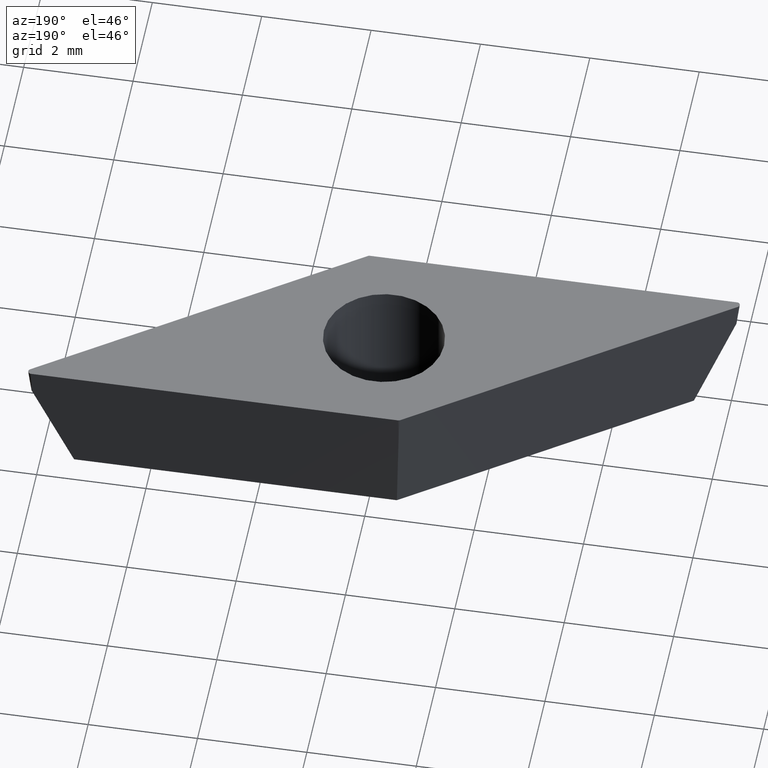
[diagram: clean part render]
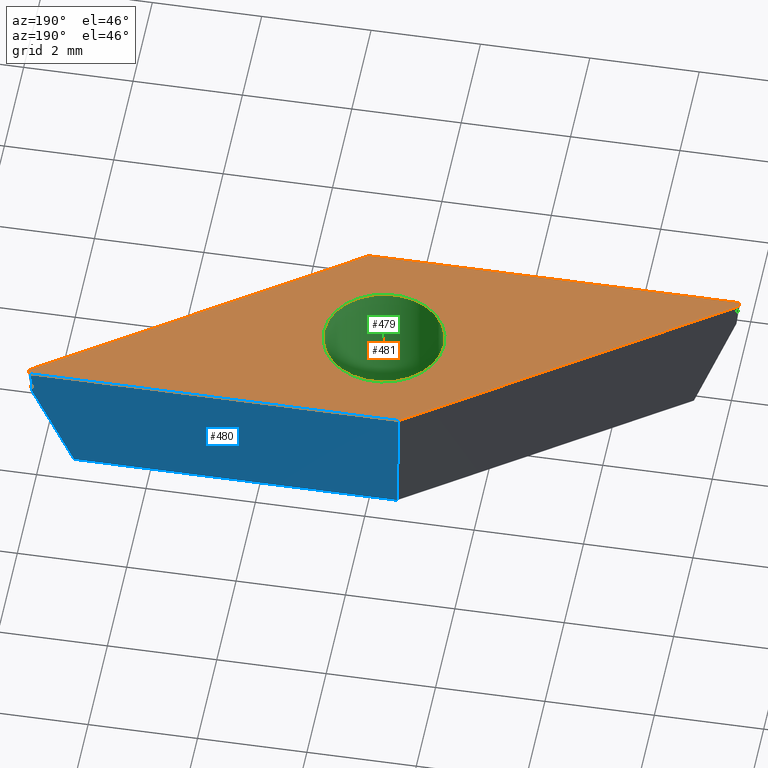
[diagram: same view with three faces highlighted in distinct colors, each labeled with its STEP entity id]
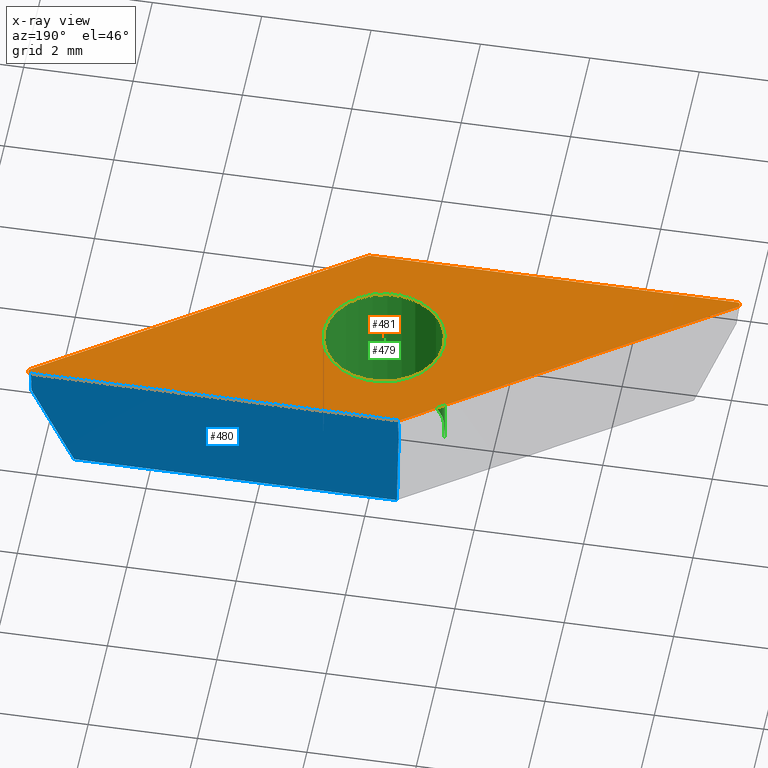
[diagram: x-ray of the same camera — body ghosted, the three highlighted faces saturated]
A machine part, auxiliary view with three faces highlighted in distinct colors.
The next image is the same camera in x-ray (body ghosted, the three faces saturated) — at least one of them is partly hidden behind the body in this view.
Their STEP definitions:

[orange] entity #481 — the highlighted planar face has unit normal (0, 0, -1).
#5 = FACE_BOUND ( 'NONE', #371, .T. ) ;
#29 = VECTOR ( 'NONE', #47, 1000.000000000000000 ) ;
#37 = LINE ( 'NONE', #58, #29 ) ;
#40 = EDGE_CURVE ( 'NONE', #359, #373, #308, .T. ) ;
#47 = DIRECTION ( 'NONE',  ( 1.000000000000000000, 1.253144218394544500E-016, -0.0000000000000000000 ) ) ;
#55 = CARTESIAN_POINT ( 'NONE',  ( 6.105319994549242700, 1.925000000000001600, 0.0000000000000000000 ) ) ;
#57 = LINE ( 'NONE', #148, #63 ) ;
#58 = CARTESIAN_POINT ( 'NONE',  ( 0.6258680959247784300, -1.985000000000000800, 0.0000000000000000000 ) ) ;
#59 = EDGE_CURVE ( 'NONE', #437, #304, #258, .T. ) ;
#62 = EDGE_CURVE ( 'NONE', #430, #396, #238, .T. ) ;
#63 = VECTOR ( 'NONE', #106, 1000.000000000000200 ) ;
#67 = DIRECTION ( 'NONE',  ( -0.0000000000000000000, -0.0000000000000000000, 1.000000000000000000 ) ) ;
#68 = CARTESIAN_POINT ( 'NONE',  ( 0.6069501685920385400, -1.985000000000000800, 0.0000000000000000000 ) ) ;
#75 = AXIS2_PLACEMENT_3D ( 'NONE', #472, #475, #94 ) ;
#80 = CARTESIAN_POINT ( 'NONE',  ( -0.6413647547731044000, 1.974149122657338900, 0.0000000000000000000 ) ) ;
#87 = CIRCLE ( 'NONE', #120, 0.05999999999999994200 ) ;
#89 = DIRECTION ( 'NONE',  ( 1.000000000000000000, 0.0000000000000000000, 0.0000000000000000000 ) ) ;
#92 = CIRCLE ( 'NONE', #449, 0.06000000000000015700 ) ;
#94 = DIRECTION ( 'NONE',  ( -1.000000000000000000, 0.0000000000000000000, 0.0000000000000000000 ) ) ;
#96 = CIRCLE ( 'NONE', #458, 1.100000000000000100 ) ;
#101 = CARTESIAN_POINT ( 'NONE',  ( 0.6413647547731018400, -1.974149122657340700, 0.0000000000000000000 ) ) ;
#106 = DIRECTION ( 'NONE',  ( -0.8191520442889948000, -0.5735764363510418300, -0.0000000000000000000 ) ) ;
#109 = CARTESIAN_POINT ( 'NONE',  ( 1.100000000000000100, 0.0000000000000000000, 0.0000000000000000000 ) ) ;
#110 = DIRECTION ( 'NONE',  ( 0.0000000000000000000, 0.0000000000000000000, 1.000000000000000000 ) ) ;
#119 = EDGE_CURVE ( 'NONE', #453, #378, #183, .T. ) ;
#120 = AXIS2_PLACEMENT_3D ( 'NONE', #185, #181, #180 ) ;
#123 = CARTESIAN_POINT ( 'NONE',  ( 6.105319994549240900, 1.985000000000001400, 0.0000000000000000000 ) ) ;
#133 = EDGE_CURVE ( 'NONE', #378, #437, #178, .T. ) ;
#137 = DIRECTION ( 'NONE',  ( 0.8191520442889946900, 0.5735764363510419400, -0.0000000000000000000 ) ) ;
#138 = DIRECTION ( 'NONE',  ( -1.000000000000000000, 3.614007241618338900E-015, 0.0000000000000000000 ) ) ;
#147 = CARTESIAN_POINT ( 'NONE',  ( 0.0000000000000000000, 0.0000000000000000000, 0.0000000000000000000 ) ) ;
#148 = CARTESIAN_POINT ( 'NONE',  ( -6.295615682691038600, -1.985000000000001400, 0.0000000000000000000 ) ) ;
#153 = CARTESIAN_POINT ( 'NONE',  ( -1.100000000000000100, 1.347111479062088500E-016, 0.0000000000000000000 ) ) ;
#155 = ORIENTED_EDGE ( 'NONE', *, *, #389, .T. ) ;
#156 = AXIS2_PLACEMENT_3D ( 'NONE', #251, #250, #248 ) ;
#157 = VERTEX_POINT ( 'NONE', #68 ) ;
#171 = CARTESIAN_POINT ( 'NONE',  ( -0.6258680959247806500, 1.984999999999999900, 0.0000000000000000000 ) ) ;
#178 = CIRCLE ( 'NONE', #465, 0.06000000000000015700 ) ;
#179 = VECTOR ( 'NONE', #137, 1000.000000000000000 ) ;
#180 = DIRECTION ( 'NONE',  ( -1.000000000000000000, 0.0000000000000000000, 0.0000000000000000000 ) ) ;
#181 = DIRECTION ( 'NONE',  ( -0.0000000000000000000, -0.0000000000000000000, 1.000000000000000000 ) ) ;
#182 = AXIS2_PLACEMENT_3D ( 'NONE', #316, #270, #302 ) ;
#183 = LINE ( 'NONE', #190, #179 ) ;
#185 = CARTESIAN_POINT ( 'NONE',  ( 0.6069501685920385400, -1.925000000000000700, 0.0000000000000000000 ) ) ;
#190 = CARTESIAN_POINT ( 'NONE',  ( 6.295615682691037700, 1.985000000000001400, 0.0000000000000000000 ) ) ;
#201 = VERTEX_POINT ( 'NONE', #461 ) ;
#205 = CARTESIAN_POINT ( 'NONE',  ( 0.0000000000000000000, 0.0000000000000000000, 0.0000000000000000000 ) ) ;
#212 = CARTESIAN_POINT ( 'NONE',  ( 6.139734580730305400, 1.875850877342661900, 0.0000000000000000000 ) ) ;
#213 = CARTESIAN_POINT ( 'NONE',  ( -6.105319994549243600, -1.985000000000001400, 0.0000000000000000000 ) ) ;
#238 = CIRCLE ( 'NONE', #457, 1.100000000000000100 ) ;
#242 = VECTOR ( 'NONE', #357, 1000.000000000000000 ) ;
#245 = CARTESIAN_POINT ( 'NONE',  ( -6.165319994549244100, -1.925000000000001600, 0.0000000000000000000 ) ) ;
#247 = CIRCLE ( 'NONE', #156, 0.06000000000000004600 ) ;
#248 = DIRECTION ( 'NONE',  ( -1.000000000000000000, 3.614007241618345200E-015, 0.0000000000000000000 ) ) ;
#250 = DIRECTION ( 'NONE',  ( -0.0000000000000000000, -0.0000000000000000000, 1.000000000000000000 ) ) ;
#251 = CARTESIAN_POINT ( 'NONE',  ( -0.6069501685920399800, 1.924999999999999800, 0.0000000000000000000 ) ) ;
#258 = LINE ( 'NONE', #171, #242 ) ;
#262 = EDGE_CURVE ( 'NONE', #396, #430, #96, .T. ) ;
#264 = DIRECTION ( 'NONE',  ( 1.000000000000000000, 0.0000000000000000000, 0.0000000000000000000 ) ) ;
#268 = DIRECTION ( 'NONE',  ( 0.0000000000000000000, 0.0000000000000000000, 1.000000000000000000 ) ) ;
#270 = DIRECTION ( 'NONE',  ( 0.0000000000000000000, 0.0000000000000000000, -1.000000000000000000 ) ) ;
#284 = EDGE_CURVE ( 'NONE', #201, #359, #92, .T. ) ;
#287 = DIRECTION ( 'NONE',  ( -1.000000000000000000, 0.0000000000000000000, 0.0000000000000000000 ) ) ;
#295 = DIRECTION ( 'NONE',  ( -0.0000000000000000000, -0.0000000000000000000, 1.000000000000000000 ) ) ;
#296 = CARTESIAN_POINT ( 'NONE',  ( -6.105319994549243600, -1.925000000000001600, 0.0000000000000000000 ) ) ;
#302 = DIRECTION ( 'NONE',  ( -1.000000000000000000, 0.0000000000000000000, -0.0000000000000000000 ) ) ;
#304 = VERTEX_POINT ( 'NONE', #377 ) ;
#308 = CIRCLE ( 'NONE', #75, 0.06000000000000015700 ) ;
#313 = EDGE_CURVE ( 'NONE', #304, #455, #247, .T. ) ;
#316 = CARTESIAN_POINT ( 'NONE',  ( 0.0000000000000000000, 0.0000000000000000000, 0.0000000000000000000 ) ) ;
#322 = PLANE ( 'NONE',  #182 ) ;
#357 = DIRECTION ( 'NONE',  ( -1.000000000000000000, -2.506288436789088400E-016, -0.0000000000000000000 ) ) ;
#359 = VERTEX_POINT ( 'NONE', #245 ) ;
#371 = EDGE_LOOP ( 'NONE', ( #383, #384 ) ) ;
#373 = VERTEX_POINT ( 'NONE', #213 ) ;
#377 = CARTESIAN_POINT ( 'NONE',  ( -0.6069501685920399800, 1.984999999999999900, 0.0000000000000000000 ) ) ;
#378 = VERTEX_POINT ( 'NONE', #212 ) ;
#383 = ORIENTED_EDGE ( 'NONE', *, *, #62, .F. ) ;
#384 = ORIENTED_EDGE ( 'NONE', *, *, #262, .F. ) ;
#385 = ORIENTED_EDGE ( 'NONE', *, *, #313, .T. ) ;
#386 = ORIENTED_EDGE ( 'NONE', *, *, #445, .T. ) ;
#388 = ORIENTED_EDGE ( 'NONE', *, *, #284, .T. ) ;
#389 = EDGE_CURVE ( 'NONE', #157, #453, #87, .T. ) ;
#390 = ORIENTED_EDGE ( 'NONE', *, *, #40, .T. ) ;
#391 = ORIENTED_EDGE ( 'NONE', *, *, #462, .T. ) ;
#395 = ORIENTED_EDGE ( 'NONE', *, *, #119, .T. ) ;
#396 = VERTEX_POINT ( 'NONE', #153 ) ;
#398 = ORIENTED_EDGE ( 'NONE', *, *, #133, .T. ) ;
#405 = EDGE_LOOP ( 'NONE', ( #474, #385, #386, #388, #390, #391, #155, #395, #398 ) ) ;
#430 = VERTEX_POINT ( 'NONE', #109 ) ;
#437 = VERTEX_POINT ( 'NONE', #123 ) ;
#445 = EDGE_CURVE ( 'NONE', #455, #201, #57, .T. ) ;
#449 = AXIS2_PLACEMENT_3D ( 'NONE', #296, #295, #287 ) ;
#453 = VERTEX_POINT ( 'NONE', #101 ) ;
#455 = VERTEX_POINT ( 'NONE', #80 ) ;
#457 = AXIS2_PLACEMENT_3D ( 'NONE', #205, #268, #264 ) ;
#458 = AXIS2_PLACEMENT_3D ( 'NONE', #147, #110, #89 ) ;
#461 = CARTESIAN_POINT ( 'NONE',  ( -6.139734580730306300, -1.875850877342662100, 0.0000000000000000000 ) ) ;
#462 = EDGE_CURVE ( 'NONE', #373, #157, #37, .T. ) ;
#465 = AXIS2_PLACEMENT_3D ( 'NONE', #55, #67, #138 ) ;
#472 = CARTESIAN_POINT ( 'NONE',  ( -6.105319994549243600, -1.925000000000001600, 0.0000000000000000000 ) ) ;
#474 = ORIENTED_EDGE ( 'NONE', *, *, #59, .T. ) ;
#475 = DIRECTION ( 'NONE',  ( -0.0000000000000000000, -0.0000000000000000000, 1.000000000000000000 ) ) ;
#481 = ADVANCED_FACE ( 'NONE', ( #5, #488 ), #322, .F. ) ;
#488 = FACE_OUTER_BOUND ( 'NONE', #405, .T. ) ;

[blue] entity #480 — the highlighted face is a freeform B-spline surface patch.
#9 = FACE_OUTER_BOUND ( 'NONE', #426, .T. ) ;
#19 = VECTOR ( 'NONE', #221, 1000.000000000000000 ) ;
#21 = CARTESIAN_POINT ( 'NONE',  ( 6.105319994549239100, 1.985000000000001400, 0.0000000000000000000 ) ) ;
#22 = EDGE_CURVE ( 'NONE', #332, #444, #191, .T. ) ;
#24 = LINE ( 'NONE', #46, #19 ) ;
#34 = CARTESIAN_POINT ( 'NONE',  ( 3.867896606835475600, 1.985000000000001400, 0.0000000000000000000 ) ) ;
#45 = VECTOR ( 'NONE', #122, 1000.000000000000000 ) ;
#46 = CARTESIAN_POINT ( 'NONE',  ( -0.6069501685920396500, 1.984999999999999900, 0.0000000000000000000 ) ) ;
#48 = LINE ( 'NONE', #143, #45 ) ;
#59 = EDGE_CURVE ( 'NONE', #437, #304, #258, .T. ) ;
#61 = CARTESIAN_POINT ( 'NONE',  ( -0.5581361871052711300, 1.770181830034056400, -1.749553595226165200 ) ) ;
#79 = CARTESIAN_POINT ( 'NONE',  ( -0.5337291963618879800, 1.692772745051086300, -2.379999999999999900 ) ) ;
#108 = CARTESIAN_POINT ( 'NONE',  ( 5.737054617167976800, 1.808886372525546200, -1.434330392839228400 ) ) ;
#114 = CARTESIAN_POINT ( 'NONE',  ( -0.5337291963618879800, 1.692772745051086300, -2.379999999999999900 ) ) ;
#115 = CARTESIAN_POINT ( 'NONE',  ( 1.433776949021000800, 1.692772745051086300, -2.379999999999999400 ) ) ;
#122 = DIRECTION ( 'NONE',  ( 3.054397261754003300E-017, -0.1218693434051477400, -0.9925461516413219800 ) ) ;
#123 = CARTESIAN_POINT ( 'NONE',  ( 6.105319994549240900, 1.985000000000001400, 0.0000000000000000000 ) ) ;
#125 = CARTESIAN_POINT ( 'NONE',  ( 6.105319994549239100, 1.925000000000001400, -0.4886607856784761000 ) ) ;
#127 = CARTESIAN_POINT ( 'NONE',  ( 3.401283094403876100, 1.692772745051087700, -2.379999999999999400 ) ) ;
#139 = CARTESIAN_POINT ( 'NONE',  ( -0.5337291963618879800, 1.692772745051086300, -2.379999999999999900 ) ) ;
#143 = CARTESIAN_POINT ( 'NONE',  ( 6.105319994549239100, 1.985000000000001400, 0.0000000000000000000 ) ) ;
#159 = CARTESIAN_POINT ( 'NONE',  ( -0.6069501685920412100, 1.924999999999996300, -0.4886607856784962500 ) ) ;
#167 = CARTESIAN_POINT ( 'NONE',  ( -0.5825431778486549500, 1.847590915017026900, -1.119107190452330600 ) ) ;
#169 = CARTESIAN_POINT ( 'NONE',  ( -0.5947466732203474700, 1.886295457508511800, -0.8038839880654133900 ) ) ;
#170 = CARTESIAN_POINT ( 'NONE',  ( -0.5703396824769630900, 1.808886372525541700, -1.434330392839247900 ) ) ;
#171 = CARTESIAN_POINT ( 'NONE',  ( -0.6258680959247806500, 1.984999999999999900, 0.0000000000000000000 ) ) ;
#191 = B_SPLINE_CURVE_WITH_KNOTS ( 'NONE', 3,
 ( #431, #368, #370, #108, #464, #338, #376 ),
 .UNSPECIFIED., .F., .F.,
 ( 4, 3, 4 ),
 ( 0.0000000000000000000, 0.001021465989923606000, 0.002042931979847211600 ),
 .UNSPECIFIED. ) ;
#200 = CARTESIAN_POINT ( 'NONE',  ( -0.6069501685920412100, 1.924999999999996300, -0.4886607856784962500 ) ) ;
#217 = CARTESIAN_POINT ( 'NONE',  ( 5.368789239786762500, 1.692772745051088100, -2.379999999999999400 ) ) ;
#221 = DIRECTION ( 'NONE',  ( -3.054397261754003300E-017, 0.1218693434051477400, 0.9925461516413219800 ) ) ;
#226 = CARTESIAN_POINT ( 'NONE',  ( -0.5459326917335797200, 1.731477287542571500, -2.064776797613082400 ) ) ;
#230 = CARTESIAN_POINT ( 'NONE',  ( 5.368789239786762500, 1.692772745051088100, -2.379999999999999400 ) ) ;
#237 = CARTESIAN_POINT ( 'NONE',  ( 6.105319994549239100, 1.634327294061305400, -2.855999999999999400 ) ) ;
#242 = VECTOR ( 'NONE', #357, 1000.000000000000000 ) ;
#258 = LINE ( 'NONE', #171, #242 ) ;
#263 = CARTESIAN_POINT ( 'NONE',  ( 3.867896606835473900, 1.634327294061305400, -2.855999999999999400 ) ) ;
#266 = B_SPLINE_CURVE_WITH_KNOTS ( 'NONE', 3,
 ( #139, #226, #61, #170, #167, #169, #159 ),
 .UNSPECIFIED., .F., .F.,
 ( 4, 3, 4 ),
 ( 0.0000000000000000000, 0.0009534745450647487100, 0.001906949090129497000 ),
 .UNSPECIFIED. ) ;
#277 = CARTESIAN_POINT ( 'NONE',  ( 1.630473219121723500, 1.984999999999999900, 0.0000000000000000000 ) ) ;
#281 = CARTESIAN_POINT ( 'NONE',  ( 1.630473219121725900, 1.634327294061303600, -2.855999999999999400 ) ) ;
#297 = CARTESIAN_POINT ( 'NONE',  ( -0.6069501685920395400, 1.634327294061303600, -2.855999999999999400 ) ) ;
#304 = VERTEX_POINT ( 'NONE', #377 ) ;
#306 = ORIENTED_EDGE ( 'NONE', *, *, #416, .T. ) ;
#307 = ORIENTED_EDGE ( 'NONE', *, *, #483, .T. ) ;
#310 = ORIENTED_EDGE ( 'NONE', *, *, #468, .T. ) ;
#311 = CARTESIAN_POINT ( 'NONE',  ( -0.6069501685920396500, 1.984999999999999900, 0.0000000000000000000 ) ) ;
#312 = ORIENTED_EDGE ( 'NONE', *, *, #59, .F. ) ;
#314 = ORIENTED_EDGE ( 'NONE', *, *, #415, .T. ) ;
#321 = ORIENTED_EDGE ( 'NONE', *, *, #22, .F. ) ;
#332 = VERTEX_POINT ( 'NONE', #230 ) ;
#338 = CARTESIAN_POINT ( 'NONE',  ( 5.982564868755474700, 1.886295457508516900, -0.8038839880653893000 ) ) ;
#357 = DIRECTION ( 'NONE',  ( -1.000000000000000000, -2.506288436789088400E-016, -0.0000000000000000000 ) ) ;
#368 = CARTESIAN_POINT ( 'NONE',  ( 5.491544365580495000, 1.731477287542574100, -2.064776797613073500 ) ) ;
#370 = CARTESIAN_POINT ( 'NONE',  ( 5.614299491374231900, 1.770181830034060600, -1.749553595226149400 ) ) ;
#375 = VERTEX_POINT ( 'NONE', #200 ) ;
#376 = CARTESIAN_POINT ( 'NONE',  ( 6.105319994549239100, 1.925000000000001400, -0.4886607856784761000 ) ) ;
#377 = CARTESIAN_POINT ( 'NONE',  ( -0.6069501685920399800, 1.984999999999999900, 0.0000000000000000000 ) ) ;
#415 = EDGE_CURVE ( 'NONE', #437, #444, #48, .T. ) ;
#416 = EDGE_CURVE ( 'NONE', #332, #454, #469, .T. ) ;
#426 = EDGE_LOOP ( 'NONE', ( #306, #307, #310, #312, #314, #321 ) ) ;
#431 = CARTESIAN_POINT ( 'NONE',  ( 5.368789239786762500, 1.692772745051088100, -2.379999999999999400 ) ) ;
#437 = VERTEX_POINT ( 'NONE', #123 ) ;
#444 = VERTEX_POINT ( 'NONE', #125 ) ;
#454 = VERTEX_POINT ( 'NONE', #79 ) ;
#464 = CARTESIAN_POINT ( 'NONE',  ( 5.859809742961721700, 1.847590915017031800, -1.119107190452307300 ) ) ;
#468 = EDGE_CURVE ( 'NONE', #375, #304, #24, .T. ) ;
#469 = B_SPLINE_CURVE_WITH_KNOTS ( 'NONE', 3,
 ( #217, #127, #115, #114 ),
 .UNSPECIFIED., .F., .F.,
 ( 4, 4 ),
 ( 8.673617379884035500E-019, 0.005902518436148649100 ),
 .UNSPECIFIED. ) ;
#480 = ADVANCED_FACE ( 'NONE', ( #9 ), #484, .T. ) ;
#483 = EDGE_CURVE ( 'NONE', #454, #375, #266, .T. ) ;
#484 = B_SPLINE_SURFACE_WITH_KNOTS ( 'NONE', 1, 3, ( 
 ( #21, #34, #277, #311 ),
 ( #237, #263, #281, #297 ) ),
 .UNSPECIFIED., .F., .F., .F.,
 ( 2, 2 ),
 ( 4, 4 ),
 ( 0.0000000000000000000, 1.000000000000000000 ),
 ( -0.006731188090474020600, -1.891792733274067200E-005 ),
 .UNSPECIFIED. ) ;

[green] entity #479 — the highlighted cylindrical surface (partial cylindrical patch) has radius 1.1 mm, axis along (0, 0, 1).
#3 = VECTOR ( 'NONE', #38, 1000.000000000000000 ) ;
#4 = EDGE_CURVE ( 'NONE', #406, #430, #256, .T. ) ;
#15 = LINE ( 'NONE', #39, #3 ) ;
#18 = AXIS2_PLACEMENT_3D ( 'NONE', #234, #232, #231 ) ;
#38 = DIRECTION ( 'NONE',  ( 0.0000000000000000000, 0.0000000000000000000, 1.000000000000000000 ) ) ;
#39 = CARTESIAN_POINT ( 'NONE',  ( -1.100000000000000100, 1.347111479062088500E-016, -2.379999999999999900 ) ) ;
#42 = DIRECTION ( 'NONE',  ( 0.0000000000000000000, 0.0000000000000000000, 1.000000000000000000 ) ) ;
#50 = FACE_OUTER_BOUND ( 'NONE', #433, .T. ) ;
#78 = DIRECTION ( 'NONE',  ( 1.000000000000000000, 0.0000000000000000000, 0.0000000000000000000 ) ) ;
#89 = DIRECTION ( 'NONE',  ( 1.000000000000000000, 0.0000000000000000000, 0.0000000000000000000 ) ) ;
#93 = CIRCLE ( 'NONE', #18, 1.100000000000000100 ) ;
#96 = CIRCLE ( 'NONE', #458, 1.100000000000000100 ) ;
#109 = CARTESIAN_POINT ( 'NONE',  ( 1.100000000000000100, 0.0000000000000000000, 0.0000000000000000000 ) ) ;
#110 = DIRECTION ( 'NONE',  ( 0.0000000000000000000, 0.0000000000000000000, 1.000000000000000000 ) ) ;
#141 = CARTESIAN_POINT ( 'NONE',  ( 1.100000000000000100, 0.0000000000000000000, -2.379999999999999900 ) ) ;
#147 = CARTESIAN_POINT ( 'NONE',  ( 0.0000000000000000000, 0.0000000000000000000, 0.0000000000000000000 ) ) ;
#153 = CARTESIAN_POINT ( 'NONE',  ( -1.100000000000000100, 1.347111479062088500E-016, 0.0000000000000000000 ) ) ;
#161 = CARTESIAN_POINT ( 'NONE',  ( -1.100000000000000100, 1.347111479062088500E-016, -2.379999999999999900 ) ) ;
#187 = CARTESIAN_POINT ( 'NONE',  ( 0.0000000000000000000, 0.0000000000000000000, -2.379999999999999900 ) ) ;
#231 = DIRECTION ( 'NONE',  ( 1.000000000000000000, 0.0000000000000000000, 0.0000000000000000000 ) ) ;
#232 = DIRECTION ( 'NONE',  ( 0.0000000000000000000, 0.0000000000000000000, 1.000000000000000000 ) ) ;
#234 = CARTESIAN_POINT ( 'NONE',  ( 0.0000000000000000000, 0.0000000000000000000, -2.379999999999999900 ) ) ;
#254 = VECTOR ( 'NONE', #331, 1000.000000000000000 ) ;
#256 = LINE ( 'NONE', #336, #254 ) ;
#262 = EDGE_CURVE ( 'NONE', #396, #430, #96, .T. ) ;
#267 = ORIENTED_EDGE ( 'NONE', *, *, #309, .F. ) ;
#275 = ORIENTED_EDGE ( 'NONE', *, *, #477, .T. ) ;
#285 = ORIENTED_EDGE ( 'NONE', *, *, #262, .T. ) ;
#289 = ORIENTED_EDGE ( 'NONE', *, *, #4, .F. ) ;
#309 = EDGE_CURVE ( 'NONE', #387, #406, #93, .T. ) ;
#331 = DIRECTION ( 'NONE',  ( 0.0000000000000000000, 0.0000000000000000000, 1.000000000000000000 ) ) ;
#336 = CARTESIAN_POINT ( 'NONE',  ( 1.100000000000000100, 0.0000000000000000000, -2.379999999999999900 ) ) ;
#387 = VERTEX_POINT ( 'NONE', #161 ) ;
#393 = AXIS2_PLACEMENT_3D ( 'NONE', #187, #42, #78 ) ;
#396 = VERTEX_POINT ( 'NONE', #153 ) ;
#406 = VERTEX_POINT ( 'NONE', #141 ) ;
#430 = VERTEX_POINT ( 'NONE', #109 ) ;
#433 = EDGE_LOOP ( 'NONE', ( #267, #275, #285, #289 ) ) ;
#458 = AXIS2_PLACEMENT_3D ( 'NONE', #147, #110, #89 ) ;
#477 = EDGE_CURVE ( 'NONE', #387, #396, #15, .T. ) ;
#478 = CYLINDRICAL_SURFACE ( 'NONE', #393, 1.100000000000000100 ) ;
#479 = ADVANCED_FACE ( 'NONE', ( #50 ), #478, .F. ) ;